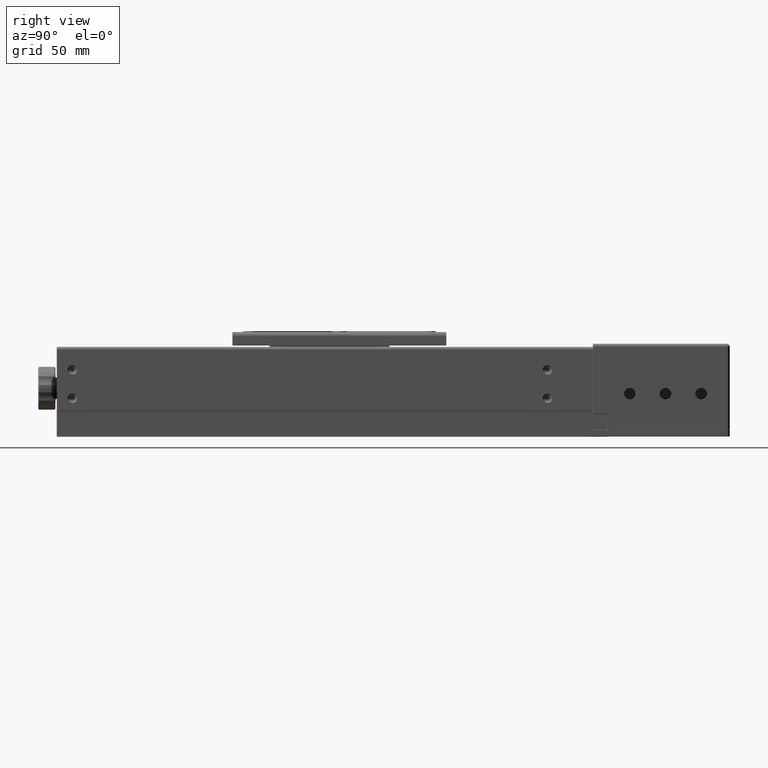
[diagram: clean part render]
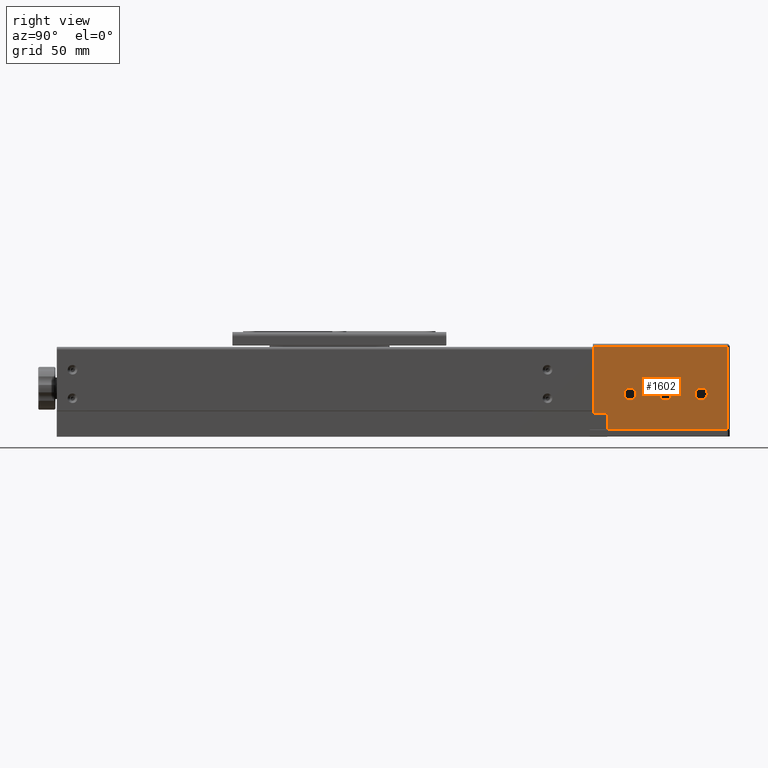
[diagram: same view with one face highlighted and labeled with its STEP entity id]
A machine part, right view. The second image highlights one B-rep face of the part: STEP entity #1602.
In plain terms, the highlighted planar face has unit normal (-1, -0, -0).
Its self-contained STEP definition (entity closure, byte-faithful):
#1337 = VERTEX_POINT ( 'NONE', #17416 ) ;
#1602 = ADVANCED_FACE ( 'NONE', ( #60773, #37012, #11289, #43048 ), #72856, .F. ) ;
#2074 = CARTESIAN_POINT ( 'NONE',  ( 4.414567697119120560, 266.0311902418279715, 41.24665025355569981 ) ) ;
#2517 = VERTEX_POINT ( 'NONE', #41656 ) ;
#3352 = CARTESIAN_POINT ( 'NONE',  ( 4.414567697119120560, 276.2311902418280170, 43.24665025355569981 ) ) ;
#4635 = VERTEX_POINT ( 'NONE', #36931 ) ;
#6482 = EDGE_CURVE ( 'NONE', #2517, #55991, #47017, .T. ) ;
#7086 = ORIENTED_EDGE ( 'NONE', *, *, #6482, .T. ) ;
#7138 = CIRCLE ( 'NONE', #62383, 4.250000000000000000 ) ;
#7430 = DIRECTION ( 'NONE',  ( -4.081702296416016490E-16, 0.000000000000000000, 1.000000000000000000 ) ) ;
#7808 = EDGE_CURVE ( 'NONE', #10825, #76341, #42236, .T. ) ;
#8648 = EDGE_LOOP ( 'NONE', ( #41739, #23094 ) ) ;
#9539 = LINE ( 'NONE', #68837, #28002 ) ;
#10111 = EDGE_CURVE ( 'NONE', #60491, #58447, #65231, .T. ) ;
#10519 = CARTESIAN_POINT ( 'NONE',  ( 4.414567697119149869, 276.2311902418280170, -16.75334974644425046 ) ) ;
#10825 = VERTEX_POINT ( 'NONE', #58599 ) ;
#11289 = FACE_BOUND ( 'NONE', #8648, .T. ) ;
#12067 = DIRECTION ( 'NONE',  ( -4.081702296416016490E-16, 0.000000000000000000, 1.000000000000000000 ) ) ;
#14823 = ORIENTED_EDGE ( 'NONE', *, *, #20781, .T. ) ;
#14982 = ORIENTED_EDGE ( 'NONE', *, *, #38948, .T. ) ;
#15294 = LINE ( 'NONE', #2074, #79042 ) ;
#15332 = LINE ( 'NONE', #16917, #30240 ) ;
#16723 = CARTESIAN_POINT ( 'NONE',  ( 4.414567697119144540, 317.0311902418280283, 12.29665025355568098 ) ) ;
#16808 = DIRECTION ( 'NONE',  ( -4.081702296416016490E-16, 0.000000000000000000, 1.000000000000000000 ) ) ;
#16917 = CARTESIAN_POINT ( 'NONE',  ( 4.414567697119120560, 266.2311902418280170, 43.24665025355569981 ) ) ;
#17416 = CARTESIAN_POINT ( 'NONE',  ( 4.414567697119149869, 342.0311902418279715, 3.796650253555669874 ) ) ;
#17838 = AXIS2_PLACEMENT_3D ( 'NONE', #74032, #24171, #12067 ) ;
#17887 = CIRCLE ( 'NONE', #25598, 4.250000000000000000 ) ;
#20781 = EDGE_CURVE ( 'NONE', #4635, #30526, #15294, .T. ) ;
#21463 = CARTESIAN_POINT ( 'NONE',  ( 4.414567697119149869, 266.0311902418279715, -16.75334974644425046 ) ) ;
#22864 = CARTESIAN_POINT ( 'NONE',  ( 4.414567697119149869, 317.0311902418280283, 8.046650253555700516 ) ) ;
#23094 = ORIENTED_EDGE ( 'NONE', *, *, #44786, .T. ) ;
#24171 = DIRECTION ( 'NONE',  ( -1.000000000000000000, -2.220446049250309876E-16, -4.081702296416040156E-16 ) ) ;
#25373 = EDGE_CURVE ( 'NONE', #55991, #2517, #34532, .T. ) ;
#25598 = AXIS2_PLACEMENT_3D ( 'NONE', #69398, #44831, #27137 ) ;
#27137 = DIRECTION ( 'NONE',  ( -4.081702296416016490E-16, 0.000000000000000000, 1.000000000000000000 ) ) ;
#27204 = ORIENTED_EDGE ( 'NONE', *, *, #65960, .T. ) ;
#27421 = DIRECTION ( 'NONE',  ( 3.262550879872249964E-16, -1.768050279409980118E-18, -1.000000000000000000 ) ) ;
#27996 = DIRECTION ( 'NONE',  ( -4.081702296416016490E-16, 0.000000000000000000, 1.000000000000000000 ) ) ;
#28002 = VECTOR ( 'NONE', #37448, 1000.000000000000000 ) ;
#30200 = CARTESIAN_POINT ( 'NONE',  ( 4.414567697119120560, 266.0311902418279715, 43.24665025355569981 ) ) ;
#30240 = VECTOR ( 'NONE', #27421, 1000.000000000000000 ) ;
#30526 = VERTEX_POINT ( 'NONE', #50559 ) ;
#30752 = ORIENTED_EDGE ( 'NONE', *, *, #60354, .T. ) ;
#31422 = VECTOR ( 'NONE', #68954, 1000.000000000000000 ) ;
#33328 = EDGE_CURVE ( 'NONE', #70700, #39699, #76969, .T. ) ;
#34375 = DIRECTION ( 'NONE',  ( -4.081702296416016490E-16, 0.000000000000000000, 1.000000000000000000 ) ) ;
#34528 = CIRCLE ( 'NONE', #42219, 4.250000000000000000 ) ;
#34532 = CIRCLE ( 'NONE', #17838, 4.250000000000000000 ) ;
#34646 = EDGE_LOOP ( 'NONE', ( #52288, #30752 ) ) ;
#34648 = CARTESIAN_POINT ( 'NONE',  ( 4.414567697119149869, 266.0311902418279715, -5.753349746444290425 ) ) ;
#34654 = ORIENTED_EDGE ( 'NONE', *, *, #51718, .T. ) ;
#36931 = CARTESIAN_POINT ( 'NONE',  ( 4.414567697119120560, 360.0311902418280283, 41.24665025355569981 ) ) ;
#37012 = FACE_BOUND ( 'NONE', #34646, .T. ) ;
#37448 = DIRECTION ( 'NONE',  ( -3.262550879872249964E-16, 1.768050279409980118E-18, 1.000000000000000000 ) ) ;
#37569 = CARTESIAN_POINT ( 'NONE',  ( 4.414567697119144540, 292.0311902418279715, 12.29665025355568098 ) ) ;
#38948 = EDGE_CURVE ( 'NONE', #30526, #60491, #15332, .T. ) ;
#39438 = EDGE_LOOP ( 'NONE', ( #14823, #14982, #60682, #34654, #43758, #27204 ) ) ;
#39699 = VERTEX_POINT ( 'NONE', #44136 ) ;
#41656 = CARTESIAN_POINT ( 'NONE',  ( 4.414567697119149869, 292.0311902418279715, 3.796650253555724941 ) ) ;
#41739 = ORIENTED_EDGE ( 'NONE', *, *, #46598, .T. ) ;
#42219 = AXIS2_PLACEMENT_3D ( 'NONE', #62558, #61373, #7430 ) ;
#42236 = CIRCLE ( 'NONE', #55133, 4.250000000000000000 ) ;
#43048 = FACE_OUTER_BOUND ( 'NONE', #39438, .T. ) ;
#43758 = ORIENTED_EDGE ( 'NONE', *, *, #33328, .T. ) ;
#44136 = CARTESIAN_POINT ( 'NONE',  ( 4.414567697119149869, 360.0311902418280283, -16.75334974644430019 ) ) ;
#44390 = LINE ( 'NONE', #3352, #31422 ) ;
#44786 = EDGE_CURVE ( 'NONE', #67848, #1337, #34528, .T. ) ;
#44831 = DIRECTION ( 'NONE',  ( -1.000000000000000000, -2.220446049250309876E-16, -4.081702296415985428E-16 ) ) ;
#46040 = CARTESIAN_POINT ( 'NONE',  ( 4.414567697119149869, 292.0311902418279715, 8.046650253555709398 ) ) ;
#46598 = EDGE_CURVE ( 'NONE', #1337, #67848, #17887, .T. ) ;
#47017 = CIRCLE ( 'NONE', #53476, 4.250000000000000000 ) ;
#48299 = DIRECTION ( 'NONE',  ( -1.000000000000000000, -2.220446049250309876E-16, -3.262550879872249964E-16 ) ) ;
#50559 = CARTESIAN_POINT ( 'NONE',  ( 4.414567697119120560, 266.2311902418280170, 41.24665025355569981 ) ) ;
#51718 = EDGE_CURVE ( 'NONE', #58447, #70700, #44390, .T. ) ;
#51758 = ORIENTED_EDGE ( 'NONE', *, *, #25373, .T. ) ;
#52288 = ORIENTED_EDGE ( 'NONE', *, *, #7808, .T. ) ;
#53038 = DIRECTION ( 'NONE',  ( -1.000000000000000000, -2.220446049250309876E-16, -4.081702296416040156E-16 ) ) ;
#53476 = AXIS2_PLACEMENT_3D ( 'NONE', #46040, #58143, #34375 ) ;
#53732 = VECTOR ( 'NONE', #58814, 1000.000000000000000 ) ;
#55133 = AXIS2_PLACEMENT_3D ( 'NONE', #22864, #53038, #16808 ) ;
#55991 = VERTEX_POINT ( 'NONE', #37569 ) ;
#58143 = DIRECTION ( 'NONE',  ( -1.000000000000000000, -2.220446049250309876E-16, -4.081702296416040156E-16 ) ) ;
#58346 = VECTOR ( 'NONE', #70920, 1000.000000000000000 ) ;
#58447 = VERTEX_POINT ( 'NONE', #78047 ) ;
#58599 = CARTESIAN_POINT ( 'NONE',  ( 4.414567697119149869, 317.0311902418280283, 3.796650253555724941 ) ) ;
#58814 = DIRECTION ( 'NONE',  ( -1.110223024625153829E-16, 1.000000000000000000, -1.321861075272959876E-16 ) ) ;
#59769 = CARTESIAN_POINT ( 'NONE',  ( 4.414567697119149869, 266.2311902418280170, -5.753349746444290425 ) ) ;
#60354 = EDGE_CURVE ( 'NONE', #76341, #10825, #7138, .T. ) ;
#60491 = VERTEX_POINT ( 'NONE', #59769 ) ;
#60682 = ORIENTED_EDGE ( 'NONE', *, *, #10111, .T. ) ;
#60773 = FACE_BOUND ( 'NONE', #66467, .T. ) ;
#61373 = DIRECTION ( 'NONE',  ( -1.000000000000000000, -2.220446049250309876E-16, -4.081702296415985428E-16 ) ) ;
#62383 = AXIS2_PLACEMENT_3D ( 'NONE', #76677, #70634, #27996 ) ;
#62552 = CARTESIAN_POINT ( 'NONE',  ( 4.414567697119144540, 342.0311902418279715, 12.29665025355572006 ) ) ;
#62558 = CARTESIAN_POINT ( 'NONE',  ( 4.414567697119149869, 342.0311902418279715, 8.046650253555700516 ) ) ;
#65231 = LINE ( 'NONE', #34648, #53732 ) ;
#65960 = EDGE_CURVE ( 'NONE', #39699, #4635, #9539, .T. ) ;
#66467 = EDGE_LOOP ( 'NONE', ( #7086, #51758 ) ) ;
#67848 = VERTEX_POINT ( 'NONE', #62552 ) ;
#68837 = CARTESIAN_POINT ( 'NONE',  ( 4.414567697119120560, 360.0311902418280283, 43.24665025355569981 ) ) ;
#68954 = DIRECTION ( 'NONE',  ( 3.262550879872249964E-16, 3.136362180800094826E-16, -1.000000000000000000 ) ) ;
#69024 = AXIS2_PLACEMENT_3D ( 'NONE', #30200, #48299, #79296 ) ;
#69398 = CARTESIAN_POINT ( 'NONE',  ( 4.414567697119149869, 342.0311902418279715, 8.046650253555700516 ) ) ;
#70634 = DIRECTION ( 'NONE',  ( -1.000000000000000000, -2.220446049250309876E-16, -4.081702296416040156E-16 ) ) ;
#70700 = VERTEX_POINT ( 'NONE', #10519 ) ;
#70920 = DIRECTION ( 'NONE',  ( -1.110223024625153829E-16, 1.000000000000000000, -1.321861075272959876E-16 ) ) ;
#71227 = DIRECTION ( 'NONE',  ( 1.110223024625153829E-16, -1.000000000000000000, 1.321861075272959876E-16 ) ) ;
#72856 = PLANE ( 'NONE',  #69024 ) ;
#74032 = CARTESIAN_POINT ( 'NONE',  ( 4.414567697119149869, 292.0311902418279715, 8.046650253555709398 ) ) ;
#76341 = VERTEX_POINT ( 'NONE', #16723 ) ;
#76677 = CARTESIAN_POINT ( 'NONE',  ( 4.414567697119149869, 317.0311902418280283, 8.046650253555700516 ) ) ;
#76969 = LINE ( 'NONE', #21463, #58346 ) ;
#78047 = CARTESIAN_POINT ( 'NONE',  ( 4.414567697119149869, 276.2311902418280170, -5.753349746444290425 ) ) ;
#79042 = VECTOR ( 'NONE', #71227, 1000.000000000000000 ) ;
#79296 = DIRECTION ( 'NONE',  ( -3.262550879872249964E-16, 0.000000000000000000, 1.000000000000000000 ) ) ;